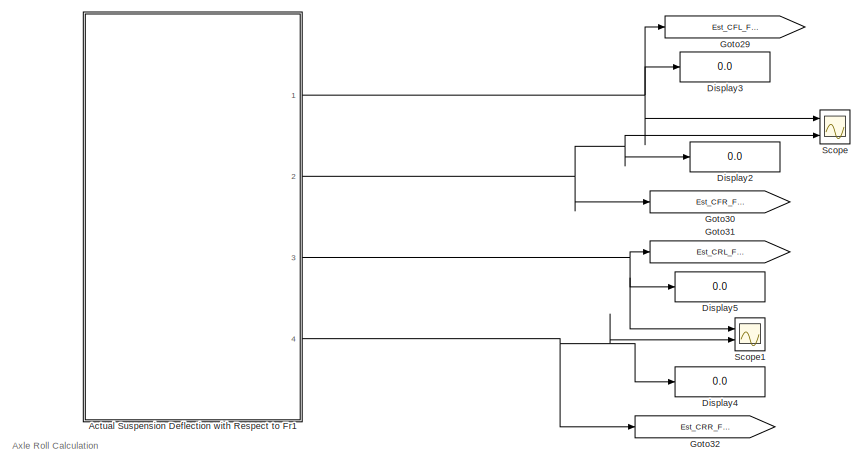
[diagram: root canvas - part 1/6, top center region]
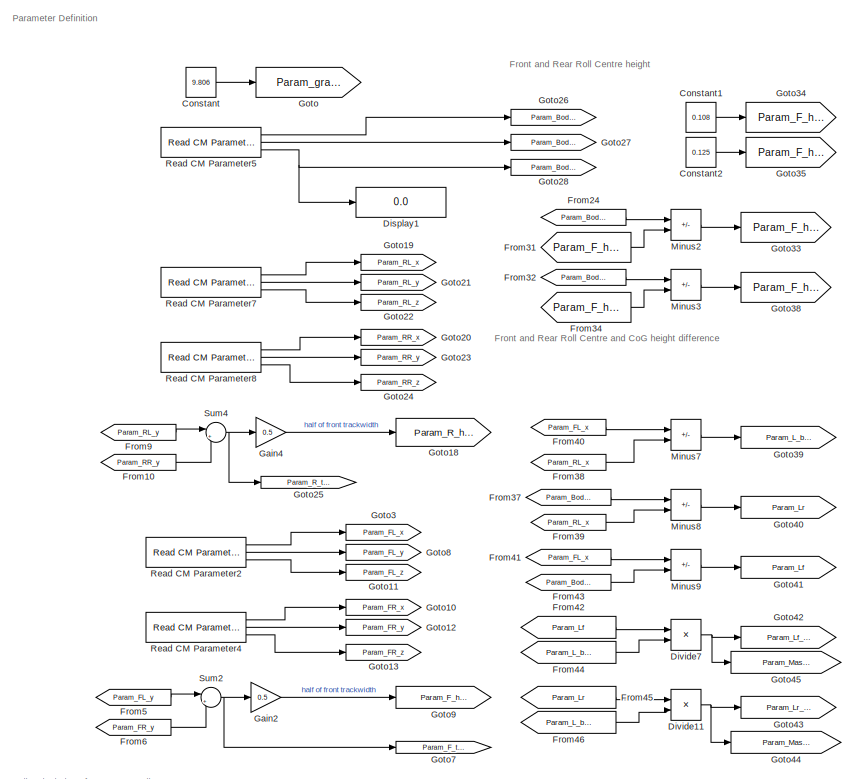
[diagram: root canvas - part 2/6, top left region]
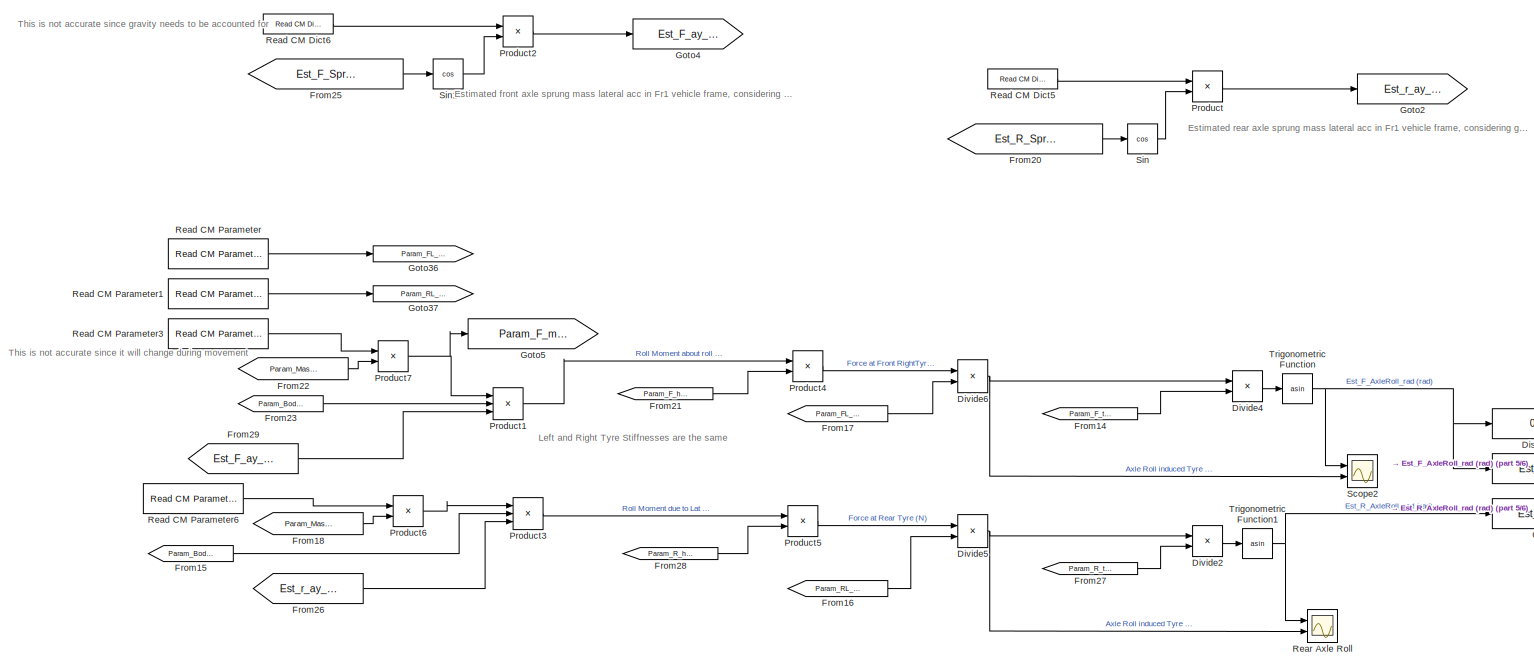
[diagram: root canvas - part 3/6, middle right region]
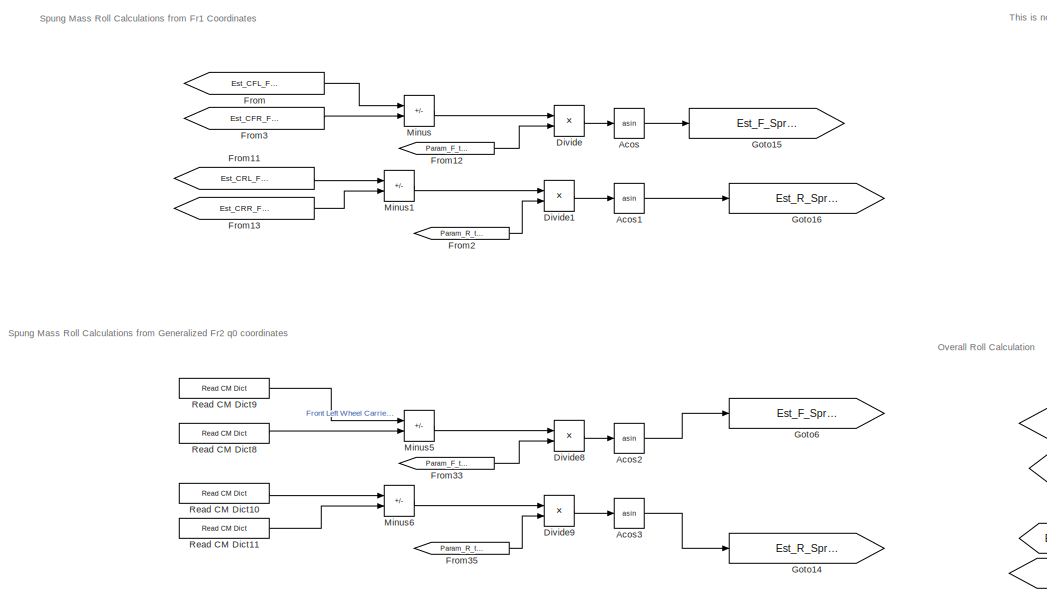
[diagram: root canvas - part 4/6, bottom left region]
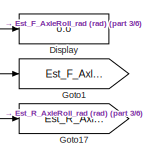
[diagram: root canvas - part 5/6, middle right region]
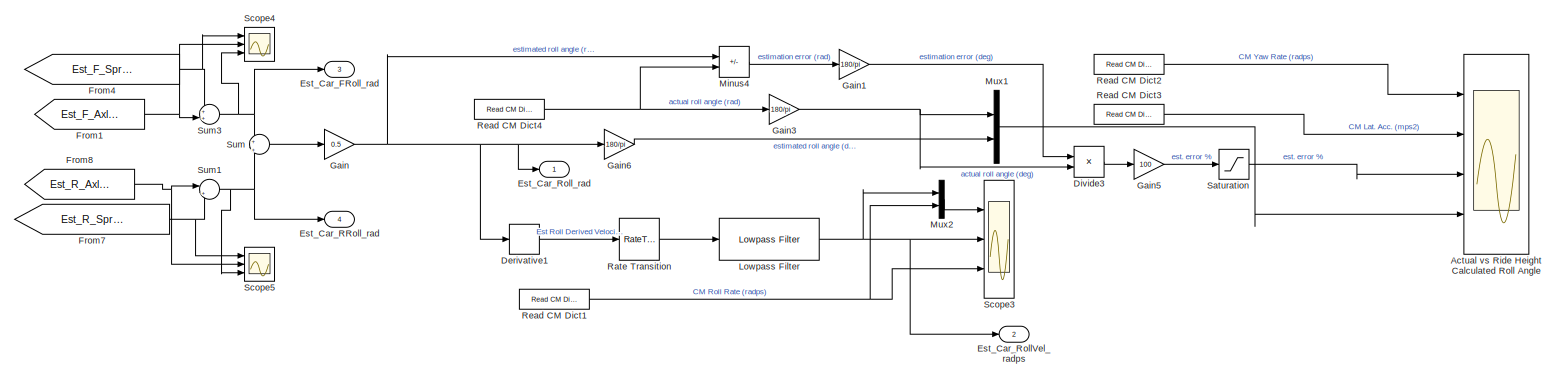
[diagram: root canvas - part 6/6, bottom right region]
MODEL slx_e56861e49f44
KIND model
CONFIG AbsTol = auto
CONFIG EnableMultiTasking = off
CONFIG FixedStep = 0.001
CONFIG MaxStep = auto
CONFIG MinStep = auto
CONFIG RelTol = 1e-3
CONFIG SampleTimeConstraint = Unconstrained
CONFIG SolverName = FixedStepAuto
CONFIG StartTime = 0.0
CONFIG StopTime = 10.0
BLOCK [Trigonometry] Acos
  Operator = asin
  Ports = [1, 1]
BLOCK [Trigonometry] Acos1
  Operator = asin
  Ports = [1, 1]
BLOCK [Trigonometry] Acos2
  Operator = asin
  Ports = [1, 1]
BLOCK [Trigonometry] Acos3
  Operator = asin
  Ports = [1, 1]
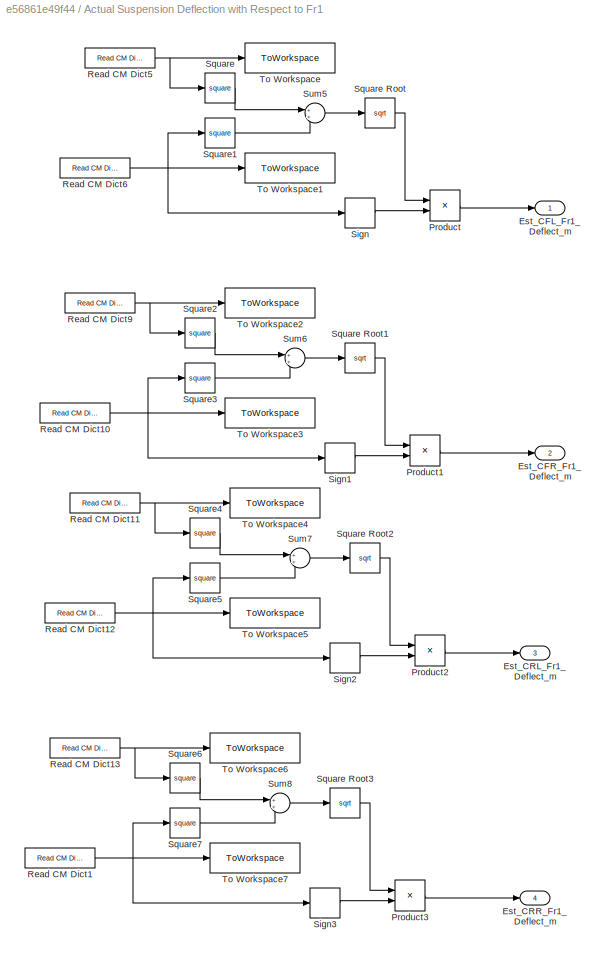
BLOCK [SubSystem] Actual Suspension Deflection with Respect to Fr1
  Ports = [0, 4]
  RequestExecContextInheritance = off
BLOCK [Outport] Actual Suspension Deflection with Respect to Fr1/Est_CFL_Fr1_Deflect_m
BLOCK [Outport] Actual Suspension Deflection with Respect to Fr1/Est_CFR_Fr1_Deflect_m
  Port = 2
BLOCK [Outport] Actual Suspension Deflection with Respect to Fr1/Est_CRL_Fr1_Deflect_m
  Port = 3
BLOCK [Outport] Actual Suspension Deflection with Respect to Fr1/Est_CRR_Fr1_Deflect_m
  Port = 4
BLOCK [Product] Actual Suspension Deflection with Respect to Fr1/Product
  Ports = [2, 1]
BLOCK [Product] Actual Suspension Deflection with Respect to Fr1/Product1
  Ports = [2, 1]
BLOCK [Product] Actual Suspension Deflection with Respect to Fr1/Product2
  Ports = [2, 1]
BLOCK [Product] Actual Suspension Deflection with Respect to Fr1/Product3
  Ports = [2, 1]
BLOCK [Reference] Actual Suspension Deflection with Respect to Fr1/Read CM Dict1  REF=CarMaker4SL/Read CM Dict
  Ports = [0, 1]
  SourceBlock = CarMaker4SL/Read CM Dict
  SourceProductName = CarMaker4SL
  SourceType = Read CarMaker Dictionary Variable(s)
BLOCK [Reference] Actual Suspension Deflection with Respect to Fr1/Read CM Dict10  REF=CarMaker4SL/Read CM Dict
  Ports = [0, 1]
  SourceBlock = CarMaker4SL/Read CM Dict
  SourceProductName = CarMaker4SL
  SourceType = Read CarMaker Dictionary Variable(s)
BLOCK [Reference] Actual Suspension Deflection with Respect to Fr1/Read CM Dict11  REF=CarMaker4SL/Read CM Dict
  Ports = [0, 1]
  SourceBlock = CarMaker4SL/Read CM Dict
  SourceProductName = CarMaker4SL
  SourceType = Read CarMaker Dictionary Variable(s)
BLOCK [Reference] Actual Suspension Deflection with Respect to Fr1/Read CM Dict12  REF=CarMaker4SL/Read CM Dict
  Ports = [0, 1]
  SourceBlock = CarMaker4SL/Read CM Dict
  SourceProductName = CarMaker4SL
  SourceType = Read CarMaker Dictionary Variable(s)
BLOCK [Reference] Actual Suspension Deflection with Respect to Fr1/Read CM Dict13  REF=CarMaker4SL/Read CM Dict
  Ports = [0, 1]
  SourceBlock = CarMaker4SL/Read CM Dict
  SourceProductName = CarMaker4SL
  SourceType = Read CarMaker Dictionary Variable(s)
BLOCK [Reference] Actual Suspension Deflection with Respect to Fr1/Read CM Dict5  REF=CarMaker4SL/Read CM Dict
  Ports = [0, 1]
  SourceBlock = CarMaker4SL/Read CM Dict
  SourceProductName = CarMaker4SL
  SourceType = Read CarMaker Dictionary Variable(s)
BLOCK [Reference] Actual Suspension Deflection with Respect to Fr1/Read CM Dict6  REF=CarMaker4SL/Read CM Dict
  Ports = [0, 1]
  SourceBlock = CarMaker4SL/Read CM Dict
  SourceProductName = CarMaker4SL
  SourceType = Read CarMaker Dictionary Variable(s)
BLOCK [Reference] Actual Suspension Deflection with Respect to Fr1/Read CM Dict9  REF=CarMaker4SL/Read CM Dict
  Ports = [0, 1]
  SourceBlock = CarMaker4SL/Read CM Dict
  SourceProductName = CarMaker4SL
  SourceType = Read CarMaker Dictionary Variable(s)
BLOCK [Signum] Actual Suspension Deflection with Respect to Fr1/Sign
BLOCK [Signum] Actual Suspension Deflection with Respect to Fr1/Sign1
BLOCK [Signum] Actual Suspension Deflection with Respect to Fr1/Sign2
BLOCK [Signum] Actual Suspension Deflection with Respect to Fr1/Sign3
BLOCK [Math] Actual Suspension Deflection with Respect to Fr1/Square
  Operator = square
  Ports = [1, 1]
BLOCK [Sqrt] Actual Suspension Deflection with Respect to Fr1/Square Root
BLOCK [Sqrt] Actual Suspension Deflection with Respect to Fr1/Square Root1
BLOCK [Sqrt] Actual Suspension Deflection with Respect to Fr1/Square Root2
BLOCK [Sqrt] Actual Suspension Deflection with Respect to Fr1/Square Root3
BLOCK [Math] Actual Suspension Deflection with Respect to Fr1/Square1
  Operator = square
  Ports = [1, 1]
BLOCK [Math] Actual Suspension Deflection with Respect to Fr1/Square2
  Operator = square
  Ports = [1, 1]
BLOCK [Math] Actual Suspension Deflection with Respect to Fr1/Square3
  Operator = square
  Ports = [1, 1]
BLOCK [Math] Actual Suspension Deflection with Respect to Fr1/Square4
  Operator = square
  Ports = [1, 1]
BLOCK [Math] Actual Suspension Deflection with Respect to Fr1/Square5
  Operator = square
  Ports = [1, 1]
BLOCK [Math] Actual Suspension Deflection with Respect to Fr1/Square6
  Operator = square
  Ports = [1, 1]
BLOCK [Math] Actual Suspension Deflection with Respect to Fr1/Square7
  Operator = square
  Ports = [1, 1]
BLOCK [Sum] Actual Suspension Deflection with Respect to Fr1/Sum5
  Ports = [2, 1]
BLOCK [Sum] Actual Suspension Deflection with Respect to Fr1/Sum6
  Ports = [2, 1]
BLOCK [Sum] Actual Suspension Deflection with Respect to Fr1/Sum7
  Ports = [2, 1]
BLOCK [Sum] Actual Suspension Deflection with Respect to Fr1/Sum8
  Ports = [2, 1]
BLOCK [ToWorkspace] Actual Suspension Deflection with Respect to Fr1/To Workspace
  FixptAsFi = on
  MaxDataPoints = inf
  Ports = [1]
  SampleTime = -1
  VariableName = Car_CFL_ty
BLOCK [ToWorkspace] Actual Suspension Deflection with Respect to Fr1/To Workspace1
  FixptAsFi = on
  MaxDataPoints = inf
  Ports = [1]
  SampleTime = -1
  VariableName = Car_CFL_tz
BLOCK [ToWorkspace] Actual Suspension Deflection with Respect to Fr1/To Workspace2
  FixptAsFi = on
  MaxDataPoints = inf
  Ports = [1]
  SampleTime = -1
  VariableName = Car_CFL_ty1
BLOCK [ToWorkspace] Actual Suspension Deflection with Respect to Fr1/To Workspace3
  FixptAsFi = on
  MaxDataPoints = inf
  Ports = [1]
  SampleTime = -1
  VariableName = Car_CFL_tz1
BLOCK [ToWorkspace] Actual Suspension Deflection with Respect to Fr1/To Workspace4
  FixptAsFi = on
  MaxDataPoints = inf
  Ports = [1]
  SampleTime = -1
  VariableName = Car_CFL_ty2
BLOCK [ToWorkspace] Actual Suspension Deflection with Respect to Fr1/To Workspace5
  FixptAsFi = on
  MaxDataPoints = inf
  Ports = [1]
  SampleTime = -1
  VariableName = Car_CFL_tz2
BLOCK [ToWorkspace] Actual Suspension Deflection with Respect to Fr1/To Workspace6
  FixptAsFi = on
  MaxDataPoints = inf
  Ports = [1]
  SampleTime = -1
  VariableName = Car_CFL_ty3
BLOCK [ToWorkspace] Actual Suspension Deflection with Respect to Fr1/To Workspace7
  FixptAsFi = on
  MaxDataPoints = inf
  Ports = [1]
  SampleTime = -1
  VariableName = Car_CFL_tz3
BLOCK [Scope] Actual vs Ride Height Calculated Roll Angle
  Floating = off
  NumInputPorts = 4
  Ports = [4]
  ScopeSpecificationString = Simulink.scopes.TimeScopeBlockCfg('CurrentConfiguration', extmgr.ConfigurationSet(extmgr.Configuration('Core','General UI',true,'FigureColor',[0.8 0.8 0.8]),extmgr.Configuration('Core','Source UI',true),extmgr.Configuration('Sources','WiredSimulink',true,'DataLoggingVariableName','ScopeData1'),extmgr.Configuration('Visuals','Time Domain',true,'SerializedDisplays',{struct('MinYLimReal','-0.76205','...<+4549ch>
BLOCK [Constant] Constant
  Value = 9.806
BLOCK [Constant] Constant1
  Value = 0.108
BLOCK [Constant] Constant2
  Value = 0.125
BLOCK [Derivative] Derivative1
BLOCK [Display] Display
  Decimation = 1
  Ports = [1]
BLOCK [Display] Display1
  Decimation = 1
  Ports = [1]
BLOCK [Display] Display2
  Decimation = 1
  Ports = [1]
BLOCK [Display] Display3
  Decimation = 1
  Ports = [1]
BLOCK [Display] Display4
  Decimation = 1
  Ports = [1]
BLOCK [Display] Display5
  Decimation = 1
  Ports = [1]
BLOCK [Product] Divide
  Inputs = */
  Ports = [2, 1]
BLOCK [Product] Divide1
  Inputs = */
  Ports = [2, 1]
BLOCK [Product] Divide11
  Inputs = */
  Ports = [2, 1]
BLOCK [Product] Divide2
  Inputs = */
  Ports = [2, 1]
BLOCK [Product] Divide3
  Inputs = */
  Ports = [2, 1]
BLOCK [Product] Divide4
  Inputs = */
  Ports = [2, 1]
BLOCK [Product] Divide5
  Inputs = */
  Ports = [2, 1]
BLOCK [Product] Divide6
  Inputs = */
  Ports = [2, 1]
BLOCK [Product] Divide7
  Inputs = */
  Ports = [2, 1]
BLOCK [Product] Divide8
  Inputs = */
  Ports = [2, 1]
BLOCK [Product] Divide9
  Inputs = */
  Ports = [2, 1]
BLOCK [Outport] Est_Car_FRoll_rad
  Port = 3
BLOCK [Outport] Est_Car_RRoll_rad
  Port = 4
BLOCK [Outport] Est_Car_RollVel_radps
  Port = 2
BLOCK [Outport] Est_Car_Roll_rad
BLOCK [From] From
  GotoTag = Est_CFL_Fr1_Deflect_m
BLOCK [From] From1
  GotoTag = Est_F_AxleRoll_rad
BLOCK [From] From10
  GotoTag = Param_RR_y
BLOCK [From] From11
  GotoTag = Est_CRL_Fr1_Deflect_m
BLOCK [From] From12
  GotoTag = Param_F_track
BLOCK [From] From13
  GotoTag = Est_CRR_Fr1_Deflect_m
BLOCK [From] From14
  GotoTag = Param_F_track
BLOCK [From] From15
  GotoTag = Param_Body_z
BLOCK [From] From16
  GotoTag = Param_RL_tstiff
BLOCK [From] From17
  GotoTag = Param_FL_tstiff
BLOCK [From] From18
  GotoTag = Param_Mass_r_perc
BLOCK [From] From2
  GotoTag = Param_R_track
BLOCK [From] From20
  GotoTag = Est_R_SprungRoll_rad
BLOCK [From] From21
  GotoTag = Param_F_halftrack
BLOCK [From] From22
  GotoTag = Param_Mass_f_perc
BLOCK [From] From23
  GotoTag = Param_Body_z
BLOCK [From] From24
  GotoTag = Param_Body_z
BLOCK [From] From25
  GotoTag = Est_F_SprungRoll_rad
BLOCK [From] From26
  GotoTag = Est_r_ay_mps2
BLOCK [From] From27
  GotoTag = Param_R_track
BLOCK [From] From28
  GotoTag = Param_R_halftrack
BLOCK [From] From29
  GotoTag = Est_F_ay_mps2
BLOCK [From] From3
  GotoTag = Est_CFR_Fr1_Deflect_m
BLOCK [From] From31
  GotoTag = Param_F_hrf
BLOCK [From] From32
  GotoTag = Param_Body_z
BLOCK [From] From33
  GotoTag = Param_F_track
BLOCK [From] From34
  GotoTag = Param_F_hrr
BLOCK [From] From35
  GotoTag = Param_R_track
BLOCK [From] From37
  GotoTag = Param_Body_x
BLOCK [From] From38
  GotoTag = Param_RL_x
BLOCK [From] From39
  GotoTag = Param_RL_x
BLOCK [From] From4
  GotoTag = Est_F_SprungRoll_rad
BLOCK [From] From40
  GotoTag = Param_FL_x
BLOCK [From] From41
  GotoTag = Param_FL_x
BLOCK [From] From42
  GotoTag = Param_Lf
BLOCK [From] From43
  GotoTag = Param_Body_x
BLOCK [From] From44
  GotoTag = Param_L_base
BLOCK [From] From45
  GotoTag = Param_Lr
BLOCK [From] From46
  GotoTag = Param_L_base
BLOCK [From] From5
  GotoTag = Param_FL_y
BLOCK [From] From6
  GotoTag = Param_FR_y
BLOCK [From] From7
  GotoTag = Est_R_SprungRoll_rad
BLOCK [From] From8
  GotoTag = Est_R_AxleRoll_rad
BLOCK [From] From9
  GotoTag = Param_RL_y
BLOCK [Gain] Gain
  Gain = 0.5
BLOCK [Gain] Gain1
  AttributesFormatString = Gain = %<Gain>
  Gain = 180/pi
BLOCK [Gain] Gain2
  Gain = 0.5
BLOCK [Gain] Gain3
  AttributesFormatString = Gain = %<Gain>
  Gain = 180/pi
BLOCK [Gain] Gain4
  Gain = 0.5
BLOCK [Gain] Gain5
  Gain = 100
BLOCK [Gain] Gain6
  AttributesFormatString = Gain = %<Gain>
  Gain = 180/pi
BLOCK [Goto] Goto
  GotoTag = Param_gravity_mps2
BLOCK [Goto] Goto1
  GotoTag = Est_F_AxleRoll_rad
BLOCK [Goto] Goto10
  GotoTag = Param_FR_x
BLOCK [Goto] Goto11
  GotoTag = Param_FL_z
BLOCK [Goto] Goto12
  GotoTag = Param_FR_y
BLOCK [Goto] Goto13
  GotoTag = Param_FR_z
BLOCK [Goto] Goto14
  GotoTag = Est_R_SprungRoll_rad
BLOCK [Goto] Goto15
  Commented = on
  GotoTag = Est_F_SprungRoll_rad
BLOCK [Goto] Goto16
  Commented = on
  GotoTag = Est_R_SprungRoll_rad
BLOCK [Goto] Goto17
  GotoTag = Est_R_AxleRoll_rad
BLOCK [Goto] Goto18
  GotoTag = Param_R_halftrack
BLOCK [Goto] Goto19
  GotoTag = Param_RL_x
BLOCK [Goto] Goto2
  GotoTag = Est_r_ay_mps2
BLOCK [Goto] Goto20
  GotoTag = Param_RR_x
BLOCK [Goto] Goto21
  GotoTag = Param_RL_y
BLOCK [Goto] Goto22
  GotoTag = Param_RL_z
BLOCK [Goto] Goto23
  GotoTag = Param_RR_y
BLOCK [Goto] Goto24
  GotoTag = Param_RR_z
BLOCK [Goto] Goto25
  GotoTag = Param_R_track
BLOCK [Goto] Goto26
  GotoTag = Param_Body_x
BLOCK [Goto] Goto27
  GotoTag = Param_Body_y
BLOCK [Goto] Goto28
  GotoTag = Param_Body_z
BLOCK [Goto] Goto29
  GotoTag = Est_CFL_Fr1_Deflect_m
BLOCK [Goto] Goto3
  GotoTag = Param_FL_x
BLOCK [Goto] Goto30
  GotoTag = Est_CFR_Fr1_Deflect_m
BLOCK [Goto] Goto31
  GotoTag = Est_CRL_Fr1_Deflect_m
BLOCK [Goto] Goto32
  GotoTag = Est_CRR_Fr1_Deflect_m
BLOCK [Goto] Goto33
  GotoTag = Param_F_hsf
BLOCK [Goto] Goto34
  GotoTag = Param_F_hrf
BLOCK [Goto] Goto35
  GotoTag = Param_F_hrr
BLOCK [Goto] Goto36
  GotoTag = Param_FL_tstiff
BLOCK [Goto] Goto37
  GotoTag = Param_RL_tstiff
BLOCK [Goto] Goto38
  GotoTag = Param_F_hsr
BLOCK [Goto] Goto39
  GotoTag = Param_L_base
BLOCK [Goto] Goto4
  GotoTag = Est_F_ay_mps2
BLOCK [Goto] Goto40
  GotoTag = Param_Lr
BLOCK [Goto] Goto41
  GotoTag = Param_Lf
BLOCK [Goto] Goto42
  GotoTag = Param_Lf_perc
BLOCK [Goto] Goto43
  GotoTag = Param_Lr_perc
BLOCK [Goto] Goto44
  GotoTag = Param_Mass_f_perc
BLOCK [Goto] Goto45
  GotoTag = Param_Mass_r_perc
BLOCK [Goto] Goto5
  GotoTag = Param_F_mass_kg
BLOCK [Goto] Goto6
  GotoTag = Est_F_SprungRoll_rad
BLOCK [Goto] Goto7
  GotoTag = Param_F_track
BLOCK [Goto] Goto8
  GotoTag = Param_FL_y
BLOCK [Goto] Goto9
  GotoTag = Param_F_halftrack
BLOCK [Reference] Lowpass Filter  REF=dspfdesign/Lowpass Filter
  Commented = through
  Ports = [1, 1]
  SourceBlock = dspfdesign/Lowpass Filter
  SourceProductBaseCode = DS
  SourceType = dsp.LowpassFilter
BLOCK [Sum] Minus
  IconShape = rectangular
  Inputs = -+
  Ports = [2, 1]
BLOCK [Sum] Minus1
  IconShape = rectangular
  Inputs = -+
  Ports = [2, 1]
BLOCK [Sum] Minus2
  IconShape = rectangular
  Inputs = +-
  Ports = [2, 1]
BLOCK [Sum] Minus3
  IconShape = rectangular
  Inputs = +-
  Ports = [2, 1]
BLOCK [Sum] Minus4
  IconShape = rectangular
  Inputs = -+
  Ports = [2, 1]
BLOCK [Sum] Minus5
  IconShape = rectangular
  Inputs = -+
  Ports = [2, 1]
BLOCK [Sum] Minus6
  IconShape = rectangular
  Inputs = -+
  Ports = [2, 1]
BLOCK [Sum] Minus7
  IconShape = rectangular
  Inputs = +-
  Ports = [2, 1]
BLOCK [Sum] Minus8
  IconShape = rectangular
  Inputs = +-
  Ports = [2, 1]
BLOCK [Sum] Minus9
  IconShape = rectangular
  Inputs = +-
  Ports = [2, 1]
BLOCK [Mux] Mux1
  DisplayOption = bar
  Inputs = 2
  Ports = [2, 1]
BLOCK [Mux] Mux2
  DisplayOption = bar
  Inputs = 2
  Ports = [2, 1]
BLOCK [Product] Product
  Ports = [2, 1]
BLOCK [Product] Product1
  Inputs = 3
  Ports = [3, 1]
BLOCK [Product] Product2
  Ports = [2, 1]
BLOCK [Product] Product3
  Inputs = 3
  Ports = [3, 1]
BLOCK [Product] Product4
  Ports = [2, 1]
BLOCK [Product] Product5
  Ports = [2, 1]
BLOCK [Product] Product6
  Ports = [2, 1]
BLOCK [Product] Product7
  Ports = [2, 1]
BLOCK [RateTransition] Rate Transition
  Commented = through
BLOCK [Reference] Read CM Dict1  REF=CarMaker4SL/Read CM Dict
  Ports = [0, 1]
  SourceBlock = CarMaker4SL/Read CM Dict
  SourceProductName = CarMaker4SL
  SourceType = Read CarMaker Dictionary Variable(s)
BLOCK [Reference] Read CM Dict10  REF=CarMaker4SL/Read CM Dict
  Ports = [0, 1]
  SourceBlock = CarMaker4SL/Read CM Dict
  SourceProductName = CarMaker4SL
  SourceType = Read CarMaker Dictionary Variable(s)
BLOCK [Reference] Read CM Dict11  REF=CarMaker4SL/Read CM Dict
  Ports = [0, 1]
  SourceBlock = CarMaker4SL/Read CM Dict
  SourceProductName = CarMaker4SL
  SourceType = Read CarMaker Dictionary Variable(s)
BLOCK [Reference] Read CM Dict2  REF=CarMaker4SL/Read CM Dict
  Ports = [0, 1]
  SourceBlock = CarMaker4SL/Read CM Dict
  SourceProductName = CarMaker4SL
  SourceType = Read CarMaker Dictionary Variable(s)
BLOCK [Reference] Read CM Dict3  REF=CarMaker4SL/Read CM Dict
  Ports = [0, 1]
  SourceBlock = CarMaker4SL/Read CM Dict
  SourceProductName = CarMaker4SL
  SourceType = Read CarMaker Dictionary Variable(s)
BLOCK [Reference] Read CM Dict4  REF=CarMaker4SL/Read CM Dict
  Ports = [0, 1]
  SourceBlock = CarMaker4SL/Read CM Dict
  SourceProductName = CarMaker4SL
  SourceType = Read CarMaker Dictionary Variable(s)
BLOCK [Reference] Read CM Dict5  REF=CarMaker4SL/Read CM Dict
  Ports = [0, 1]
  SourceBlock = CarMaker4SL/Read CM Dict
  SourceProductName = CarMaker4SL
  SourceType = Read CarMaker Dictionary Variable(s)
BLOCK [Reference] Read CM Dict6  REF=CarMaker4SL/Read CM Dict
  Ports = [0, 1]
  SourceBlock = CarMaker4SL/Read CM Dict
  SourceProductName = CarMaker4SL
  SourceType = Read CarMaker Dictionary Variable(s)
BLOCK [Reference] Read CM Dict8  REF=CarMaker4SL/Read CM Dict
  Ports = [0, 1]
  SourceBlock = CarMaker4SL/Read CM Dict
  SourceProductName = CarMaker4SL
  SourceType = Read CarMaker Dictionary Variable(s)
BLOCK [Reference] Read CM Dict9  REF=CarMaker4SL/Read CM Dict
  Ports = [0, 1]
  SourceBlock = CarMaker4SL/Read CM Dict
  SourceProductName = CarMaker4SL
  SourceType = Read CarMaker Dictionary Variable(s)
BLOCK [Reference] Read CM Parameter  REF=CarMaker4SL/Read CM Parameter
  Ports = [0, 1]
  SourceBlock = CarMaker4SL/Read CM Parameter
  SourceProductName = CarMaker4SL
  SourceType = Read CarMaker Infofile Parameter
BLOCK [Reference] Read CM Parameter1  REF=CarMaker4SL/Read CM Parameter
  Ports = [0, 1]
  SourceBlock = CarMaker4SL/Read CM Parameter
  SourceProductName = CarMaker4SL
  SourceType = Read CarMaker Infofile Parameter
BLOCK [Reference] Read CM Parameter2  REF=CarMaker4SL/Read CM Parameter
  Ports = [0, 3]
  SourceBlock = CarMaker4SL/Read CM Parameter
  SourceProductName = CarMaker4SL
  SourceType = Read CarMaker Infofile Parameter
BLOCK [Reference] Read CM Parameter3  REF=CarMaker4SL/Read CM Parameter
  Ports = [0, 1]
  SourceBlock = CarMaker4SL/Read CM Parameter
  SourceProductName = CarMaker4SL
  SourceType = Read CarMaker Infofile Parameter
BLOCK [Reference] Read CM Parameter4  REF=CarMaker4SL/Read CM Parameter
  Ports = [0, 3]
  SourceBlock = CarMaker4SL/Read CM Parameter
  SourceProductName = CarMaker4SL
  SourceType = Read CarMaker Infofile Parameter
BLOCK [Reference] Read CM Parameter5  REF=CarMaker4SL/Read CM Parameter
  Ports = [0, 3]
  SourceBlock = CarMaker4SL/Read CM Parameter
  SourceProductName = CarMaker4SL
  SourceType = Read CarMaker Infofile Parameter
BLOCK [Reference] Read CM Parameter6  REF=CarMaker4SL/Read CM Parameter
  Ports = [0, 1]
  SourceBlock = CarMaker4SL/Read CM Parameter
  SourceProductName = CarMaker4SL
  SourceType = Read CarMaker Infofile Parameter
BLOCK [Reference] Read CM Parameter7  REF=CarMaker4SL/Read CM Parameter
  Ports = [0, 3]
  SourceBlock = CarMaker4SL/Read CM Parameter
  SourceProductName = CarMaker4SL
  SourceType = Read CarMaker Infofile Parameter
BLOCK [Reference] Read CM Parameter8  REF=CarMaker4SL/Read CM Parameter
  Ports = [0, 3]
  SourceBlock = CarMaker4SL/Read CM Parameter
  SourceProductName = CarMaker4SL
  SourceType = Read CarMaker Infofile Parameter
BLOCK [Scope] Rear Axle Roll
  Floating = off
  NumInputPorts = 2
  Ports = [2]
  ScopeSpecificationString = Simulink.scopes.TimeScopeBlockCfg('CurrentConfiguration', extmgr.ConfigurationSet(extmgr.Configuration('Core','General UI',true),extmgr.Configuration('Core','Source UI',true),extmgr.Configuration('Sources','WiredSimulink',true,'DataLoggingVariableName','ScopeData2'),extmgr.Configuration('Visuals','Time Domain',true,'SerializedDisplays',{struct('MinYLimReal','-0.00086','MaxYLimReal','0.00771','YLab...<+2083ch>
BLOCK [Saturate] Saturation
  LowerLimit = -100
  UpperLimit = 100
BLOCK [Scope] Scope
  Floating = off
  NumInputPorts = 3
  Ports = [3]
  ScopeSpecificationString = Simulink.scopes.TimeScopeBlockCfg('CurrentConfiguration', extmgr.ConfigurationSet(extmgr.Configuration('Core','General UI',true),extmgr.Configuration('Core','Source UI',true),extmgr.Configuration('Sources','WiredSimulink',true,'DataLoggingVariableName','ScopeData3'),extmgr.Configuration('Visuals','Time Domain',true,'SerializedDisplays',{struct('MinYLimReal','-0.00811','MaxYLimReal','0.00093','YLab...<+1526ch>
BLOCK [Scope] Scope1
  Floating = off
  NumInputPorts = 2
  Ports = [2]
  ScopeSpecificationString = Simulink.scopes.TimeScopeBlockCfg('CurrentConfiguration', extmgr.ConfigurationSet(extmgr.Configuration('Core','General UI',true),extmgr.Configuration('Core','Source UI',true),extmgr.Configuration('Sources','WiredSimulink',true,'DataLoggingVariableName','ScopeData4'),extmgr.Configuration('Visuals','Time Domain',true,'SerializedDisplays',{struct('MinYLimReal','-0.03082','MaxYLimReal','0.04339','YLab...<+1539ch>
BLOCK [Scope] Scope2
  Floating = off
  NumInputPorts = 2
  Ports = [2]
  ScopeSpecificationString = Simulink.scopes.TimeScopeBlockCfg('CurrentConfiguration', extmgr.ConfigurationSet(extmgr.Configuration('Core','General UI',true),extmgr.Configuration('Core','Source UI',true),extmgr.Configuration('Sources','WiredSimulink',true,'DataLoggingVariableName','ScopeData5'),extmgr.Configuration('Visuals','Time Domain',true,'SerializedDisplays',{struct('MinYLimReal','-0.0177','MaxYLimReal','0.01866','YLabe...<+2085ch>
BLOCK [Scope] Scope3
  Floating = off
  NumInputPorts = 3
  Ports = [3]
  ScopeSpecificationString = Simulink.scopes.TimeScopeBlockCfg('CurrentConfiguration', extmgr.ConfigurationSet(extmgr.Configuration('Core','General UI',true),extmgr.Configuration('Core','Source UI',true),extmgr.Configuration('Sources','WiredSimulink',true),extmgr.Configuration('Visuals','Time Domain',true,'SerializedDisplays',{struct('MinYLimReal','-0.00355','MaxYLimReal','0.0189','YLabelReal','','MinYLimMag','0.00000','MaxYL...<+3231ch>
BLOCK [Scope] Scope4
  Floating = off
  NumInputPorts = 3
  Ports = [3]
  ScopeSpecificationString = Simulink.scopes.TimeScopeBlockCfg('CurrentConfiguration', extmgr.ConfigurationSet(extmgr.Configuration('Core','General UI',true),extmgr.Configuration('Core','Source UI',true),extmgr.Configuration('Sources','WiredSimulink',true,'DataLoggingVariableName','ScopeData1'),extmgr.Configuration('Visuals','Time Domain',true,'SerializedDisplays',{struct('MinYLimReal','-0.07941','MaxYLimReal','0.08663','YLab...<+1456ch>
BLOCK [Scope] Scope5
  Floating = off
  NumInputPorts = 3
  Ports = [3]
  ScopeSpecificationString = Simulink.scopes.TimeScopeBlockCfg('CurrentConfiguration', extmgr.ConfigurationSet(extmgr.Configuration('Core','General UI',true),extmgr.Configuration('Core','Source UI',true),extmgr.Configuration('Sources','WiredSimulink',true,'DataLoggingVariableName','ScopeData2'),extmgr.Configuration('Visuals','Time Domain',true,'SerializedDisplays',{struct('MinYLimReal','-0.07706','MaxYLimReal','0.08449','YLab...<+1432ch>
BLOCK [Trigonometry] Sin
  Operator = cos
  Ports = [1, 1]
BLOCK [Trigonometry] Sin1
  Operator = cos
  Ports = [1, 1]
BLOCK [Sum] Sum
  Inputs = +|+
  Ports = [2, 1]
BLOCK [Sum] Sum1
  Inputs = |++
  Ports = [2, 1]
BLOCK [Sum] Sum2
  Inputs = |+-
  Ports = [2, 1]
BLOCK [Sum] Sum3
  Inputs = ++|
  Ports = [2, 1]
BLOCK [Sum] Sum4
  Inputs = |+-
  Ports = [2, 1]
BLOCK [Trigonometry] Trigonometric Function
  Operator = asin
  Ports = [1, 1]
BLOCK [Trigonometry] Trigonometric Function1
  Operator = asin
  Ports = [1, 1]
ANNOTATION (root): Axle Roll Calculation
ANNOTATION (root): Estimated front axle sprung mass lateral acc in Fr1 vehicle frame, considering gravity
ANNOTATION (root): Estimated rear axle sprung mass lateral acc in Fr1 vehicle frame, considering gravity
ANNOTATION (root): Front and Rear Roll Centre and CoG height difference
ANNOTATION (root): Front and Rear Roll Centre height
ANNOTATION (root): Left and Right Tyre Stiffnesses are the same
ANNOTATION (root): Overall Roll Calculation
ANNOTATION (root): Parameter Definition
ANNOTATION (root): Spung Mass Roll Calculations from Fr1 Coordinates
ANNOTATION (root): Spung Mass Roll Calculations from Generalized Fr2 q0 coordinates
ANNOTATION (root): This is not accurate since gravity needs to be accounted for
ANNOTATION (root): This is not accurate since it will change during movement
LINE Acos1:1 -> Goto16:1
LINE Acos2:1 -> Goto6:1
LINE Acos3:1 -> Goto14:1
LINE Acos:1 -> Goto15:1
LINE Actual Suspension Deflection with Respect to Fr1/Product1:1 -> Actual Suspension Deflection with Respect to Fr1/Est_CFR_Fr1_Deflect_m:1
LINE Actual Suspension Deflection with Respect to Fr1/Product2:1 -> Actual Suspension Deflection with Respect to Fr1/Est_CRL_Fr1_Deflect_m:1
LINE Actual Suspension Deflection with Respect to Fr1/Product3:1 -> Actual Suspension Deflection with Respect to Fr1/Est_CRR_Fr1_Deflect_m:1
LINE Actual Suspension Deflection with Respect to Fr1/Product:1 -> Actual Suspension Deflection with Respect to Fr1/Est_CFL_Fr1_Deflect_m:1
NET Actual Suspension Deflection with Respect to Fr1/Read CM Dict10:1 -> Actual Suspension Deflection with Respect to Fr1/Sign1:1, Actual Suspension Deflection with Respect to Fr1/Square3:1, Actual Suspension Deflection with Respect to Fr1/To Workspace3:1
NET Actual Suspension Deflection with Respect to Fr1/Read CM Dict11:1 -> Actual Suspension Deflection with Respect to Fr1/Square4:1, Actual Suspension Deflection with Respect to Fr1/To Workspace4:1
NET Actual Suspension Deflection with Respect to Fr1/Read CM Dict12:1 -> Actual Suspension Deflection with Respect to Fr1/Sign2:1, Actual Suspension Deflection with Respect to Fr1/Square5:1, Actual Suspension Deflection with Respect to Fr1/To Workspace5:1
NET Actual Suspension Deflection with Respect to Fr1/Read CM Dict13:1 -> Actual Suspension Deflection with Respect to Fr1/Square6:1, Actual Suspension Deflection with Respect to Fr1/To Workspace6:1
NET Actual Suspension Deflection with Respect to Fr1/Read CM Dict1:1 -> Actual Suspension Deflection with Respect to Fr1/Sign3:1, Actual Suspension Deflection with Respect to Fr1/Square7:1, Actual Suspension Deflection with Respect to Fr1/To Workspace7:1
NET Actual Suspension Deflection with Respect to Fr1/Read CM Dict5:1 -> Actual Suspension Deflection with Respect to Fr1/Square:1, Actual Suspension Deflection with Respect to Fr1/To Workspace:1
NET Actual Suspension Deflection with Respect to Fr1/Read CM Dict6:1 -> Actual Suspension Deflection with Respect to Fr1/Sign:1, Actual Suspension Deflection with Respect to Fr1/Square1:1, Actual Suspension Deflection with Respect to Fr1/To Workspace1:1
NET Actual Suspension Deflection with Respect to Fr1/Read CM Dict9:1 -> Actual Suspension Deflection with Respect to Fr1/Square2:1, Actual Suspension Deflection with Respect to Fr1/To Workspace2:1
LINE Actual Suspension Deflection with Respect to Fr1/Sign1:1 -> Actual Suspension Deflection with Respect to Fr1/Product1:2
LINE Actual Suspension Deflection with Respect to Fr1/Sign2:1 -> Actual Suspension Deflection with Respect to Fr1/Product2:2
LINE Actual Suspension Deflection with Respect to Fr1/Sign3:1 -> Actual Suspension Deflection with Respect to Fr1/Product3:2
LINE Actual Suspension Deflection with Respect to Fr1/Sign:1 -> Actual Suspension Deflection with Respect to Fr1/Product:2
LINE Actual Suspension Deflection with Respect to Fr1/Square Root1:1 -> Actual Suspension Deflection with Respect to Fr1/Product1:1
LINE Actual Suspension Deflection with Respect to Fr1/Square Root2:1 -> Actual Suspension Deflection with Respect to Fr1/Product2:1
LINE Actual Suspension Deflection with Respect to Fr1/Square Root3:1 -> Actual Suspension Deflection with Respect to Fr1/Product3:1
LINE Actual Suspension Deflection with Respect to Fr1/Square Root:1 -> Actual Suspension Deflection with Respect to Fr1/Product:1
LINE Actual Suspension Deflection with Respect to Fr1/Square1:1 -> Actual Suspension Deflection with Respect to Fr1/Sum5:2
LINE Actual Suspension Deflection with Respect to Fr1/Square2:1 -> Actual Suspension Deflection with Respect to Fr1/Sum6:1
LINE Actual Suspension Deflection with Respect to Fr1/Square3:1 -> Actual Suspension Deflection with Respect to Fr1/Sum6:2
LINE Actual Suspension Deflection with Respect to Fr1/Square4:1 -> Actual Suspension Deflection with Respect to Fr1/Sum7:1
LINE Actual Suspension Deflection with Respect to Fr1/Square5:1 -> Actual Suspension Deflection with Respect to Fr1/Sum7:2
LINE Actual Suspension Deflection with Respect to Fr1/Square6:1 -> Actual Suspension Deflection with Respect to Fr1/Sum8:1
LINE Actual Suspension Deflection with Respect to Fr1/Square7:1 -> Actual Suspension Deflection with Respect to Fr1/Sum8:2
LINE Actual Suspension Deflection with Respect to Fr1/Square:1 -> Actual Suspension Deflection with Respect to Fr1/Sum5:1
LINE Actual Suspension Deflection with Respect to Fr1/Sum5:1 -> Actual Suspension Deflection with Respect to Fr1/Square Root:1
LINE Actual Suspension Deflection with Respect to Fr1/Sum6:1 -> Actual Suspension Deflection with Respect to Fr1/Square Root1:1
LINE Actual Suspension Deflection with Respect to Fr1/Sum7:1 -> Actual Suspension Deflection with Respect to Fr1/Square Root2:1
LINE Actual Suspension Deflection with Respect to Fr1/Sum8:1 -> Actual Suspension Deflection with Respect to Fr1/Square Root3:1
NET Actual Suspension Deflection with Respect to Fr1:1 -> Display3:1, Goto29:1, Scope:1
NET Actual Suspension Deflection with Respect to Fr1:2 -> Display2:1, Goto30:1, Scope:3
NET Actual Suspension Deflection with Respect to Fr1:3 -> Display5:1, Goto31:1, Scope1:1
NET Actual Suspension Deflection with Respect to Fr1:4 -> Display4:1, Goto32:1, Scope1:2
LINE Constant1:1 -> Goto34:1
LINE Constant2:1 -> Goto35:1
LINE Constant:1 -> Goto:1
LINE Derivative1:1 -> Rate Transition:1
NET Divide11:1 -> Goto43:1, Goto44:1
LINE Divide1:1 -> Acos1:1
LINE Divide2:1 -> Trigonometric Function1:1
LINE Divide3:1 -> Gain5:1
LINE Divide4:1 -> Trigonometric Function:1
NET Divide5:1 -> Divide2:1, Rear Axle Roll:2
NET Divide6:1 -> Divide4:1, Scope2:2
NET Divide7:1 -> Goto42:1, Goto45:1
LINE Divide8:1 -> Acos2:1
LINE Divide9:1 -> Acos3:1
LINE Divide:1 -> Acos:1
LINE From10:1 -> Sum4:2
LINE From11:1 -> Minus1:1
LINE From12:1 -> Divide:2
LINE From13:1 -> Minus1:2
LINE From14:1 -> Divide4:2
LINE From15:1 -> Product3:2
LINE From16:1 -> Divide5:2
LINE From17:1 -> Divide6:2
LINE From18:1 -> Product6:2
NET From1:1 -> Scope4:2, Sum3:2
LINE From20:1 -> Sin:1
LINE From21:1 -> Product4:2
LINE From22:1 -> Product7:2
LINE From23:1 -> Product1:2
LINE From24:1 -> Minus2:1
LINE From25:1 -> Sin1:1
LINE From26:1 -> Product3:3
LINE From27:1 -> Divide2:2
LINE From28:1 -> Product5:2
LINE From29:1 -> Product1:3
LINE From2:1 -> Divide1:2
LINE From31:1 -> Minus2:2
LINE From32:1 -> Minus3:1
LINE From33:1 -> Divide8:2
LINE From34:1 -> Minus3:2
LINE From35:1 -> Divide9:2
LINE From37:1 -> Minus8:1
LINE From38:1 -> Minus7:2
LINE From39:1 -> Minus8:2
LINE From3:1 -> Minus:2
LINE From40:1 -> Minus7:1
LINE From41:1 -> Minus9:1
LINE From42:1 -> Divide7:1
LINE From43:1 -> Minus9:2
LINE From44:1 -> Divide7:2
LINE From45:1 -> Divide11:1
LINE From46:1 -> Divide11:2
NET From4:1 -> Scope4:1, Sum3:1
LINE From5:1 -> Sum2:1
LINE From6:1 -> Sum2:2
NET From7:1 -> Scope5:1, Sum1:2
NET From8:1 -> Scope5:2, Sum1:1
LINE From9:1 -> Sum4:1
LINE From:1 -> Minus:1
LINE Gain1:1 -> Divide3:1
LINE Gain2:1 -> Goto9:1
NET Gain3:1 -> Divide3:2, Mux1:1
LINE Gain4:1 -> Goto18:1
LINE Gain5:1 -> Saturation:1
LINE Gain6:1 -> Mux1:2
NET Gain:1 -> Derivative1:1, Est_Car_Roll_rad:1, Gain6:1, Minus4:1
NET Lowpass Filter:1 -> Est_Car_RollVel_radps:1, Mux2:1, Scope3:2
LINE Minus1:1 -> Divide1:1
LINE Minus2:1 -> Goto33:1
LINE Minus3:1 -> Goto38:1
LINE Minus4:1 -> Gain1:1
LINE Minus5:1 -> Divide8:1
LINE Minus6:1 -> Divide9:1
LINE Minus7:1 -> Goto39:1
LINE Minus8:1 -> Goto40:1
LINE Minus9:1 -> Goto41:1
LINE Minus:1 -> Divide:1
LINE Mux1:1 -> Actual vs Ride Height Calculated Roll Angle:4
LINE Mux2:1 -> Scope3:1
LINE Product1:1 -> Product4:1
LINE Product2:1 -> Goto4:1
LINE Product3:1 -> Product5:1
LINE Product4:1 -> Divide6:1
LINE Product5:1 -> Divide5:1
LINE Product6:1 -> Product3:1
NET Product7:1 -> Goto5:1, Product1:1
LINE Product:1 -> Goto2:1
LINE Rate Transition:1 -> Lowpass Filter:1
LINE Read CM Dict10:1 -> Minus6:1
LINE Read CM Dict11:1 -> Minus6:2
NET Read CM Dict1:1 -> Mux2:2, Scope3:3
LINE Read CM Dict2:1 -> Actual vs Ride Height Calculated Roll Angle:1
LINE Read CM Dict3:1 -> Actual vs Ride Height Calculated Roll Angle:2
NET Read CM Dict4:1 -> Gain3:1, Minus4:2
LINE Read CM Dict5:1 -> Product:1
LINE Read CM Dict6:1 -> Product2:1
LINE Read CM Dict8:1 -> Minus5:2
LINE Read CM Dict9:1 -> Minus5:1
LINE Read CM Parameter1:1 -> Goto37:1
LINE Read CM Parameter2:1 -> Goto3:1
LINE Read CM Parameter2:2 -> Goto8:1
LINE Read CM Parameter2:3 -> Goto11:1
LINE Read CM Parameter3:1 -> Product7:1
LINE Read CM Parameter4:1 -> Goto10:1
LINE Read CM Parameter4:2 -> Goto12:1
LINE Read CM Parameter4:3 -> Goto13:1
LINE Read CM Parameter5:1 -> Goto26:1
LINE Read CM Parameter5:2 -> Goto27:1
NET Read CM Parameter5:3 -> Display1:1, Goto28:1
LINE Read CM Parameter6:1 -> Product6:1
LINE Read CM Parameter7:1 -> Goto19:1
LINE Read CM Parameter7:2 -> Goto21:1
LINE Read CM Parameter7:3 -> Goto22:1
LINE Read CM Parameter8:1 -> Goto20:1
LINE Read CM Parameter8:2 -> Goto23:1
LINE Read CM Parameter8:3 -> Goto24:1
LINE Read CM Parameter:1 -> Goto36:1
LINE Saturation:1 -> Actual vs Ride Height Calculated Roll Angle:3
LINE Sin1:1 -> Product2:2
LINE Sin:1 -> Product:2
NET Sum1:1 -> Est_Car_RRoll_rad:1, Scope5:3, Sum:2
NET Sum2:1 -> Gain2:1, Goto7:1
NET Sum3:1 -> Est_Car_FRoll_rad:1, Scope4:3, Sum:1
NET Sum4:1 -> Gain4:1, Goto25:1
LINE Sum:1 -> Gain:1
NET Trigonometric Function1:1 -> Goto17:1, Rear Axle Roll:1
NET Trigonometric Function:1 -> Display:1, Goto1:1, Scope2:1
note: NET lines group one-source signal fan-out (src -> all destinations, sorted); 1:1 wires keep LINE
